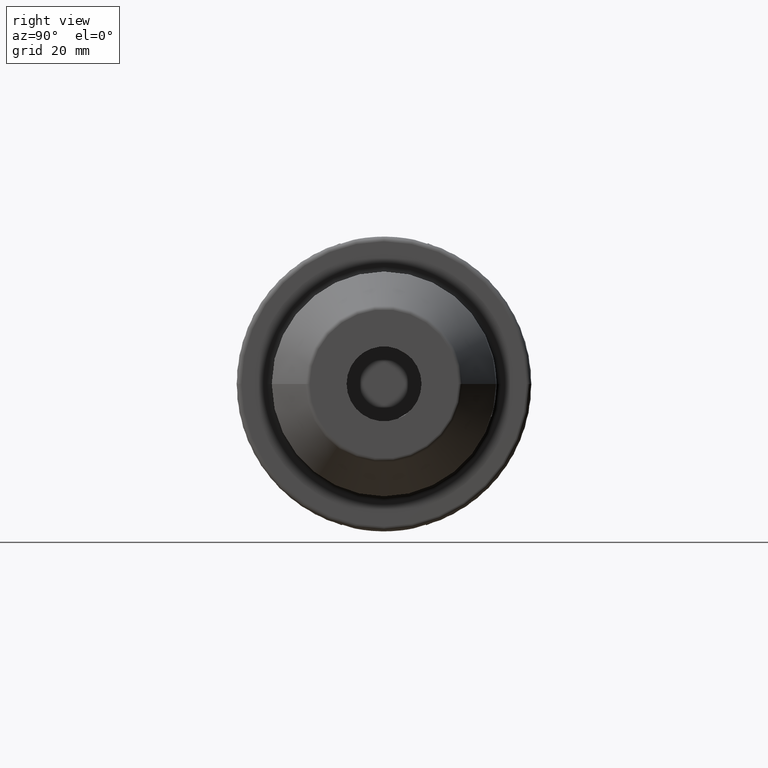
[diagram: clean part render]
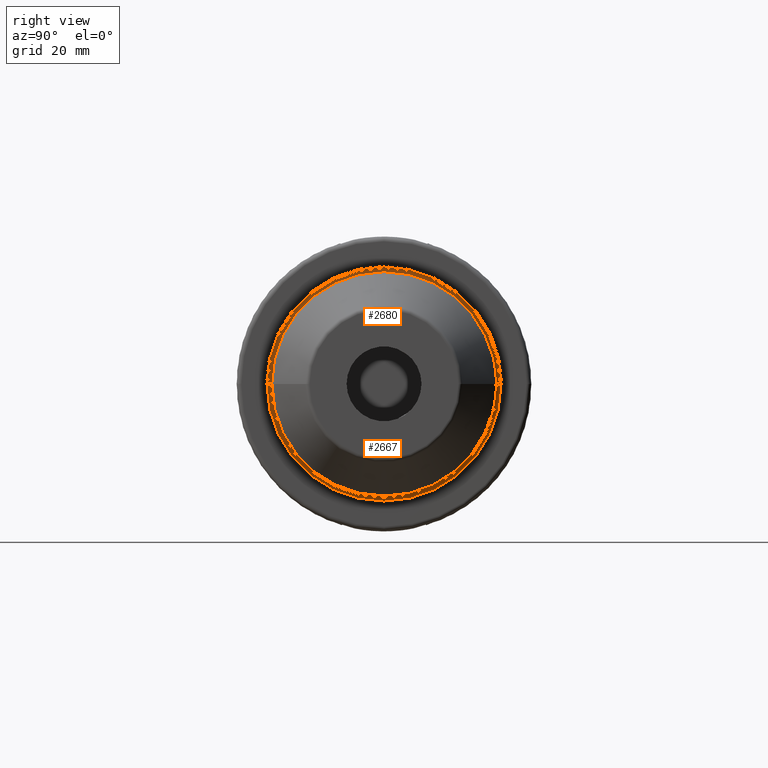
[diagram: same view with one multi-face feature highlighted, each face labeled with its STEP entity id]
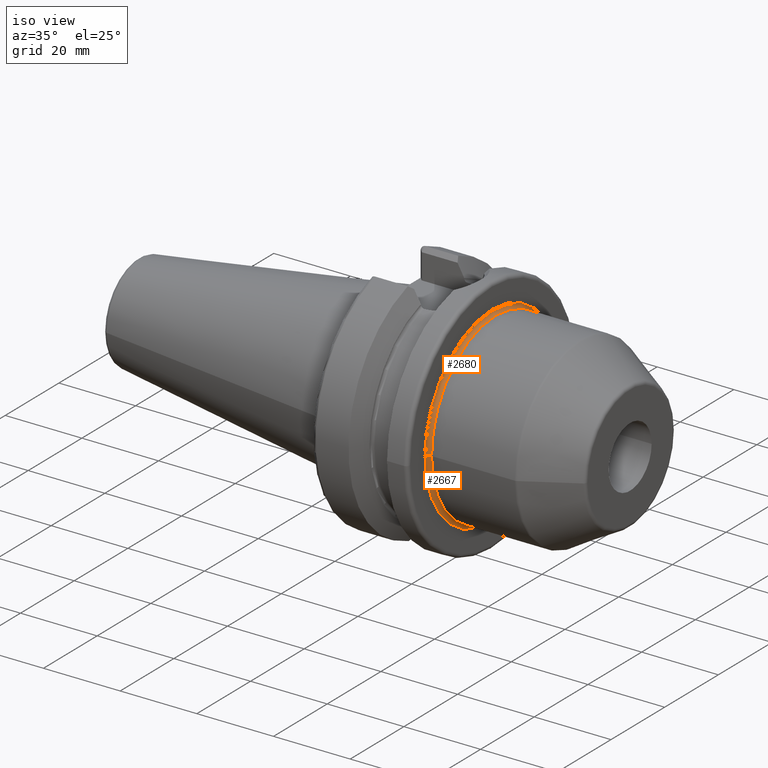
[diagram: same view with one multi-face feature highlighted, each face labeled with its STEP entity id]
A machine part, right view. The highlighted faces form ONE feature: a constant-radius fillet chain: 2 tangent blend faces with common blend radius 1 mm. The faces share edges in the B-rep.
A second angle (iso view) of the same feature is appended — it is thin or edge-on in the first view.
Their STEP definitions:
[1] entity #2667 (Torus):
#836=CARTESIAN_POINT('',(2.7E1,0.E0,0.E0));
#837=DIRECTION('',(1.E0,0.E0,0.E0));
#838=DIRECTION('',(0.E0,-1.E0,0.E0));
#839=AXIS2_PLACEMENT_3D('',#836,#837,#838);
#846=CARTESIAN_POINT('',(2.8E1,-2.5E1,1.587618925214E-14));
#847=DIRECTION('',(0.E0,0.E0,-1.E0));
#848=DIRECTION('',(-1.E0,4.973799150321E-14,0.E0));
#849=AXIS2_PLACEMENT_3D('',#846,#847,#848);
#851=CARTESIAN_POINT('',(2.8E1,2.5E1,-1.856848008686E-14));
#852=DIRECTION('',(0.E0,0.E0,1.E0));
#853=DIRECTION('',(-1.E0,-4.618527782441E-14,0.E0));
#854=AXIS2_PLACEMENT_3D('',#851,#852,#853);
#931=CARTESIAN_POINT('',(2.8E1,0.E0,0.E0));
#932=DIRECTION('',(1.E0,0.E0,0.E0));
#933=DIRECTION('',(0.E0,-1.E0,0.E0));
#934=AXIS2_PLACEMENT_3D('',#931,#932,#933);
#1529=CARTESIAN_POINT('',(2.7E1,-2.5E1,0.E0));
#1530=CARTESIAN_POINT('',(2.7E1,2.5E1,0.E0));
#1531=VERTEX_POINT('',#1529);
#1532=VERTEX_POINT('',#1530);
#1533=CARTESIAN_POINT('',(2.8E1,-2.4E1,0.E0));
#1534=CARTESIAN_POINT('',(2.8E1,2.4E1,0.E0));
#1535=VERTEX_POINT('',#1533);
#1536=VERTEX_POINT('',#1534);
#2653=CARTESIAN_POINT('',(2.8E1,0.E0,0.E0));
#2654=DIRECTION('',(1.E0,0.E0,0.E0));
#2655=DIRECTION('',(0.E0,-9.999794752457E-1,6.406956165906E-3));
#2656=AXIS2_PLACEMENT_3D('',#2653,#2654,#2655);
#2657=TOROIDAL_SURFACE('',#2656,2.5E1,1.E0);
#2658=ORIENTED_EDGE('',*,*,#2646,.F.);
#2660=ORIENTED_EDGE('',*,*,#2659,.T.);
#2662=ORIENTED_EDGE('',*,*,#2661,.T.);
#2664=ORIENTED_EDGE('',*,*,#2663,.F.);
#2665=EDGE_LOOP('',(#2658,#2660,#2662,#2664));
#2666=FACE_OUTER_BOUND('',#2665,.F.);
#2667=ADVANCED_FACE('',(#2666),#2657,.F.);
#840=CIRCLE('',#839,2.5E1);
#850=CIRCLE('',#849,1.E0);
#855=CIRCLE('',#854,1.E0);
#935=CIRCLE('',#934,2.4E1);
#2646=EDGE_CURVE('',#1531,#1532,#840,.T.);
#2659=EDGE_CURVE('',#1531,#1535,#850,.T.);
#2661=EDGE_CURVE('',#1535,#1536,#935,.T.);
#2663=EDGE_CURVE('',#1532,#1536,#855,.T.);
[2] entity #2680 (Torus):
#841=CARTESIAN_POINT('',(2.7E1,0.E0,0.E0));
#842=DIRECTION('',(1.E0,0.E0,0.E0));
#843=DIRECTION('',(0.E0,1.E0,0.E0));
#844=AXIS2_PLACEMENT_3D('',#841,#842,#843);
#846=CARTESIAN_POINT('',(2.8E1,-2.5E1,1.587618925214E-14));
#847=DIRECTION('',(0.E0,0.E0,-1.E0));
#848=DIRECTION('',(-1.E0,4.973799150321E-14,0.E0));
#849=AXIS2_PLACEMENT_3D('',#846,#847,#848);
#851=CARTESIAN_POINT('',(2.8E1,2.5E1,-1.856848008686E-14));
#852=DIRECTION('',(0.E0,0.E0,1.E0));
#853=DIRECTION('',(-1.E0,-4.618527782441E-14,0.E0));
#854=AXIS2_PLACEMENT_3D('',#851,#852,#853);
#861=CARTESIAN_POINT('',(2.8E1,0.E0,0.E0));
#862=DIRECTION('',(1.E0,0.E0,0.E0));
#863=DIRECTION('',(0.E0,1.E0,0.E0));
#864=AXIS2_PLACEMENT_3D('',#861,#862,#863);
#1529=CARTESIAN_POINT('',(2.7E1,-2.5E1,0.E0));
#1530=CARTESIAN_POINT('',(2.7E1,2.5E1,0.E0));
#1531=VERTEX_POINT('',#1529);
#1532=VERTEX_POINT('',#1530);
#1533=CARTESIAN_POINT('',(2.8E1,-2.4E1,0.E0));
#1534=CARTESIAN_POINT('',(2.8E1,2.4E1,0.E0));
#1535=VERTEX_POINT('',#1533);
#1536=VERTEX_POINT('',#1534);
#2668=CARTESIAN_POINT('',(2.8E1,0.E0,0.E0));
#2669=DIRECTION('',(1.E0,0.E0,0.E0));
#2670=DIRECTION('',(0.E0,9.999794752457E-1,-6.406956165906E-3));
#2671=AXIS2_PLACEMENT_3D('',#2668,#2669,#2670);
#2672=TOROIDAL_SURFACE('',#2671,2.5E1,1.E0);
#2674=ORIENTED_EDGE('',*,*,#2673,.T.);
#2675=ORIENTED_EDGE('',*,*,#2659,.F.);
#2676=ORIENTED_EDGE('',*,*,#2648,.F.);
#2677=ORIENTED_EDGE('',*,*,#2663,.T.);
#2678=EDGE_LOOP('',(#2674,#2675,#2676,#2677));
#2679=FACE_OUTER_BOUND('',#2678,.F.);
#2680=ADVANCED_FACE('',(#2679),#2672,.F.);
#845=CIRCLE('',#844,2.5E1);
#850=CIRCLE('',#849,1.E0);
#855=CIRCLE('',#854,1.E0);
#865=CIRCLE('',#864,2.4E1);
#2648=EDGE_CURVE('',#1532,#1531,#845,.T.);
#2659=EDGE_CURVE('',#1531,#1535,#850,.T.);
#2663=EDGE_CURVE('',#1532,#1536,#855,.T.);
#2673=EDGE_CURVE('',#1536,#1535,#865,.T.);